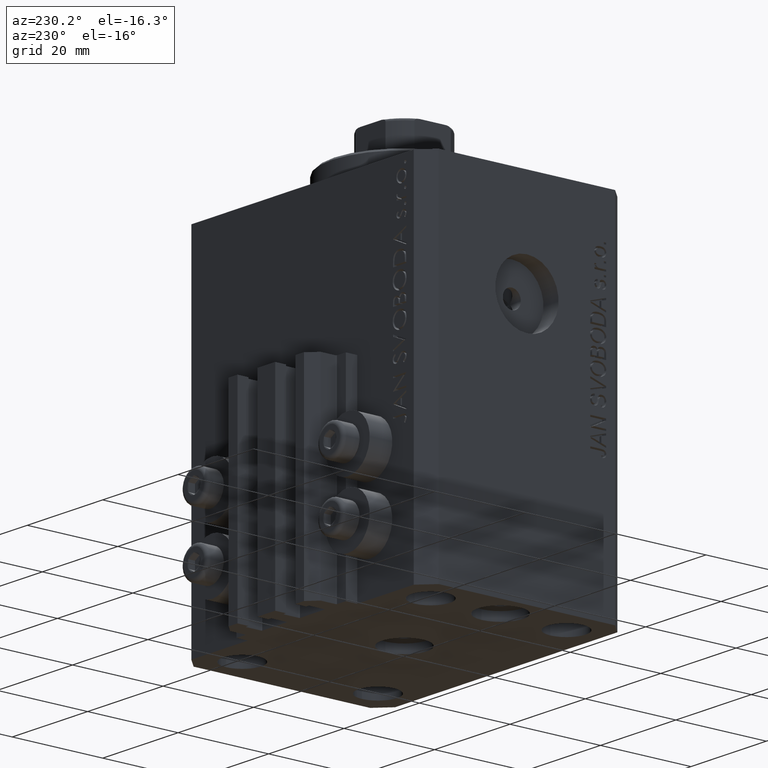
[diagram: clean part render]
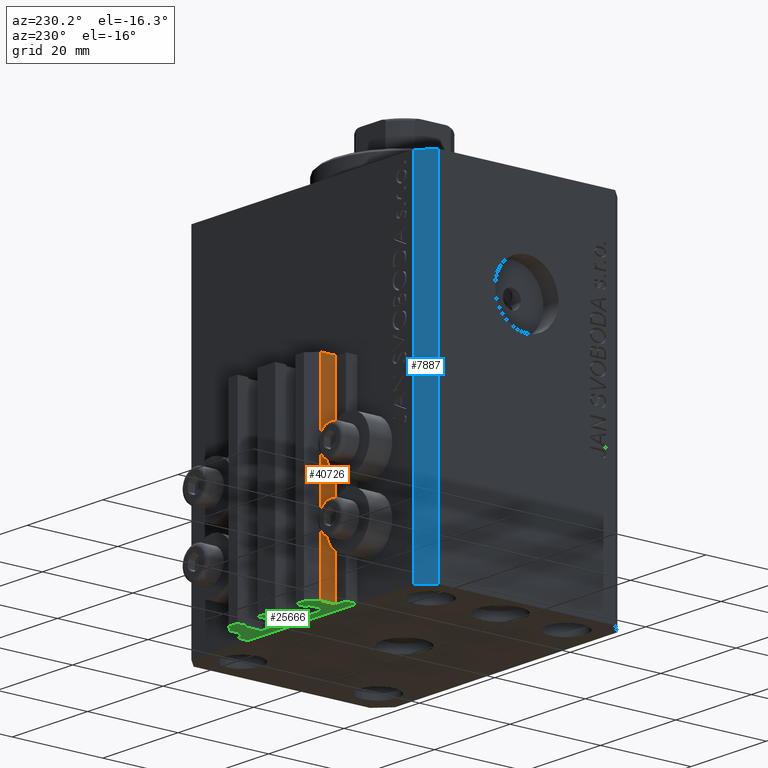
[diagram: same view with three faces highlighted in distinct colors, each labeled with its STEP entity id]
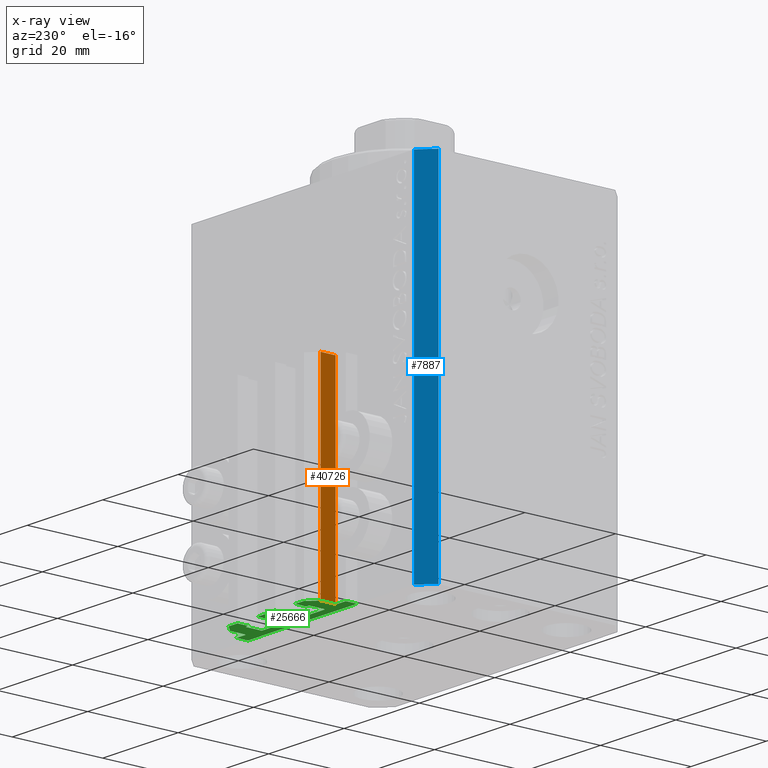
[diagram: x-ray of the same camera — body ghosted, the three highlighted faces saturated]
A machine part, auxiliary view with three faces highlighted in distinct colors.
The next image is the same camera in x-ray (body ghosted, the three faces saturated) — at least one of them is partly hidden behind the body in this view.
Their STEP definitions:

[orange] entity #40726 — the highlighted planar face has unit normal (-1, 0, 0).
#80 = DIRECTION ( 'NONE',  ( -1.000000000000000000, 0.000000000000000000, 0.000000000000000000 ) ) ;
#971 = DIRECTION ( 'NONE',  ( 0.000000000000000000, -1.000000000000000000, 0.000000000000000000 ) ) ;
#1113 = ORIENTED_EDGE ( 'NONE', *, *, #45556, .F. ) ;
#1433 = LINE ( 'NONE', #5736, #36878 ) ;
#2154 = EDGE_CURVE ( 'NONE', #24884, #34151, #42245, .T. ) ;
#4260 = CARTESIAN_POINT ( 'NONE',  ( -12.00000000000000000, 28.49999999999948841, -77.00000000000000000 ) ) ;
#5592 = CARTESIAN_POINT ( 'NONE',  ( -12.00000000000000000, 25.19999999999949125, -77.00000000000000000 ) ) ;
#5691 = FACE_OUTER_BOUND ( 'NONE', #47113, .T. ) ;
#5736 = CARTESIAN_POINT ( 'NONE',  ( -12.00000000000000000, 28.49999999999948841, -77.00000000000000000 ) ) ;
#7991 = CARTESIAN_POINT ( 'NONE',  ( -12.00000000000000000, 28.49999999999948841, -33.00000000000000000 ) ) ;
#8513 = DIRECTION ( 'NONE',  ( 0.000000000000000000, -1.000000000000000000, 0.000000000000000000 ) ) ;
#10120 = DIRECTION ( 'NONE',  ( 0.000000000000000000, 0.000000000000000000, 1.000000000000000000 ) ) ;
#11389 = CARTESIAN_POINT ( 'NONE',  ( -12.00000000000000000, 28.49999999999948841, -33.00000000000000000 ) ) ;
#12878 = VECTOR ( 'NONE', #8513, 1000.000000000000000 ) ;
#14720 = PLANE ( 'NONE',  #41870 ) ;
#16094 = ORIENTED_EDGE ( 'NONE', *, *, #27514, .T. ) ;
#21410 = CARTESIAN_POINT ( 'NONE',  ( -12.00000000000000000, 25.19999999999949125, -77.00000000000000000 ) ) ;
#23521 = DIRECTION ( 'NONE',  ( 0.000000000000000000, 0.000000000000000000, 1.000000000000000000 ) ) ;
#24768 = CARTESIAN_POINT ( 'NONE',  ( -12.00000000000000000, 25.19999999999949125, -33.00000000000000000 ) ) ;
#24884 = VERTEX_POINT ( 'NONE', #4260 ) ;
#25466 = LINE ( 'NONE', #21410, #35368 ) ;
#26777 = EDGE_CURVE ( 'NONE', #24884, #31742, #1433, .T. ) ;
#27514 = EDGE_CURVE ( 'NONE', #34151, #47459, #25466, .T. ) ;
#28206 = ORIENTED_EDGE ( 'NONE', *, *, #26777, .F. ) ;
#31742 = VERTEX_POINT ( 'NONE', #7991 ) ;
#31857 = DIRECTION ( 'NONE',  ( 0.000000000000000000, 0.000000000000000000, 1.000000000000000000 ) ) ;
#33860 = CARTESIAN_POINT ( 'NONE',  ( -12.00000000000000000, 28.49999999999948841, -77.00000000000000000 ) ) ;
#33956 = LINE ( 'NONE', #11389, #12878 ) ;
#33989 = ORIENTED_EDGE ( 'NONE', *, *, #2154, .T. ) ;
#34151 = VERTEX_POINT ( 'NONE', #5592 ) ;
#35368 = VECTOR ( 'NONE', #10120, 1000.000000000000000 ) ;
#36878 = VECTOR ( 'NONE', #23521, 1000.000000000000000 ) ;
#40726 = ADVANCED_FACE ( 'NONE', ( #5691 ), #14720, .T. ) ;
#41870 = AXIS2_PLACEMENT_3D ( 'NONE', #43136, #80, #31857 ) ;
#42245 = LINE ( 'NONE', #33860, #43651 ) ;
#43136 = CARTESIAN_POINT ( 'NONE',  ( -12.00000000000000000, 28.49999999999948841, -77.00000000000000000 ) ) ;
#43651 = VECTOR ( 'NONE', #971, 1000.000000000000000 ) ;
#45556 = EDGE_CURVE ( 'NONE', #31742, #47459, #33956, .T. ) ;
#47113 = EDGE_LOOP ( 'NONE', ( #1113, #28206, #33989, #16094 ) ) ;
#47459 = VERTEX_POINT ( 'NONE', #24768 ) ;

[blue] entity #7887 — the highlighted planar face has unit normal (-0.7071, 0.7071, 0).
#1726 = LINE ( 'NONE', #38685, #2165 ) ;
#2165 = VECTOR ( 'NONE', #9399, 1000.000000000000000 ) ;
#5705 = VERTEX_POINT ( 'NONE', #13856 ) ;
#7209 = DIRECTION ( 'NONE',  ( -0.7071067811865474617, -0.7071067811865474617, 0.000000000000000000 ) ) ;
#7691 = FACE_OUTER_BOUND ( 'NONE', #44393, .T. ) ;
#7887 = ADVANCED_FACE ( 'NONE', ( #7691 ), #32891, .T. ) ;
#8948 = VERTEX_POINT ( 'NONE', #22698 ) ;
#9399 = DIRECTION ( 'NONE',  ( 0.000000000000000000, 0.000000000000000000, 1.000000000000000000 ) ) ;
#9913 = EDGE_CURVE ( 'NONE', #5705, #8948, #22470, .T. ) ;
#11050 = DIRECTION ( 'NONE',  ( -0.7071067811865475727, 0.7071067811865475727, 0.000000000000000000 ) ) ;
#12185 = DIRECTION ( 'NONE',  ( 0.000000000000000000, 0.000000000000000000, 1.000000000000000000 ) ) ;
#12416 = LINE ( 'NONE', #40755, #36810 ) ;
#12721 = ORIENTED_EDGE ( 'NONE', *, *, #9913, .F. ) ;
#13856 = CARTESIAN_POINT ( 'NONE',  ( -29.49999999999650413, 22.49999999999949907, 0.000000000000000000 ) ) ;
#15866 = AXIS2_PLACEMENT_3D ( 'NONE', #25463, #11050, #7209 ) ;
#17306 = VECTOR ( 'NONE', #30158, 1000.000000000000114 ) ;
#18394 = CARTESIAN_POINT ( 'NONE',  ( -29.49999999999650413, 22.49999999999949907, 0.000000000000000000 ) ) ;
#21016 = EDGE_CURVE ( 'NONE', #27257, #8948, #1726, .T. ) ;
#22470 = LINE ( 'NONE', #18394, #17306 ) ;
#22698 = CARTESIAN_POINT ( 'NONE',  ( -32.49999999999650413, 19.49999999999949907, 0.000000000000000000 ) ) ;
#24913 = EDGE_CURVE ( 'NONE', #37896, #5705, #12416, .T. ) ;
#25463 = CARTESIAN_POINT ( 'NONE',  ( -29.49999999999650413, 22.49999999999949907, -77.00000000000000000 ) ) ;
#26384 = EDGE_CURVE ( 'NONE', #37896, #27257, #30543, .T. ) ;
#26952 = CARTESIAN_POINT ( 'NONE',  ( -29.49999999999650413, 22.49999999999949907, -77.00000000000000000 ) ) ;
#27257 = VERTEX_POINT ( 'NONE', #32949 ) ;
#27404 = DIRECTION ( 'NONE',  ( -0.7071067811865474617, -0.7071067811865474617, 0.000000000000000000 ) ) ;
#29342 = CARTESIAN_POINT ( 'NONE',  ( -29.49999999999650413, 22.49999999999949907, -77.00000000000000000 ) ) ;
#30158 = DIRECTION ( 'NONE',  ( -0.7071067811865474617, -0.7071067811865474617, 0.000000000000000000 ) ) ;
#30543 = LINE ( 'NONE', #26952, #34546 ) ;
#32891 = PLANE ( 'NONE',  #15866 ) ;
#32949 = CARTESIAN_POINT ( 'NONE',  ( -32.49999999999650413, 19.49999999999949907, -77.00000000000000000 ) ) ;
#34546 = VECTOR ( 'NONE', #27404, 1000.000000000000114 ) ;
#36810 = VECTOR ( 'NONE', #12185, 1000.000000000000000 ) ;
#37896 = VERTEX_POINT ( 'NONE', #29342 ) ;
#38685 = CARTESIAN_POINT ( 'NONE',  ( -32.49999999999650413, 19.49999999999949907, -77.00000000000000000 ) ) ;
#40145 = ORIENTED_EDGE ( 'NONE', *, *, #26384, .T. ) ;
#40755 = CARTESIAN_POINT ( 'NONE',  ( -29.49999999999650413, 22.49999999999949907, -77.00000000000000000 ) ) ;
#42606 = ORIENTED_EDGE ( 'NONE', *, *, #21016, .T. ) ;
#42708 = ORIENTED_EDGE ( 'NONE', *, *, #24913, .F. ) ;
#44393 = EDGE_LOOP ( 'NONE', ( #12721, #42708, #40145, #42606 ) ) ;

[green] entity #25666 — the highlighted planar face has unit normal (0, 0, 1).
#38 = VERTEX_POINT ( 'NONE', #17412 ) ;
#79 = CARTESIAN_POINT ( 'NONE',  ( 2.349999999999999645, 28.09999999999950049, -77.00000000000000000 ) ) ;
#115 = EDGE_CURVE ( 'NONE', #18746, #43552, #33471, .T. ) ;
#166 = VERTEX_POINT ( 'NONE', #12107 ) ;
#399 = CARTESIAN_POINT ( 'NONE',  ( 9.999999999999994671, 30.49999999999949551, -77.00000000000000000 ) ) ;
#467 = CARTESIAN_POINT ( 'NONE',  ( 7.649999999999995026, 30.49999999999949196, -77.00000000000000000 ) ) ;
#503 = VECTOR ( 'NONE', #10905, 1000.000000000000000 ) ;
#550 = CARTESIAN_POINT ( 'NONE',  ( -1.600000000000000755, 24.69999999999949480, -77.00000000000000000 ) ) ;
#971 = DIRECTION ( 'NONE',  ( 0.000000000000000000, -1.000000000000000000, 0.000000000000000000 ) ) ;
#1613 = VERTEX_POINT ( 'NONE', #39697 ) ;
#1848 = ORIENTED_EDGE ( 'NONE', *, *, #10666, .T. ) ;
#1860 = CARTESIAN_POINT ( 'NONE',  ( -1.800000000000000933, 24.49999999999949551, -77.00000000000000000 ) ) ;
#2007 = VERTEX_POINT ( 'NONE', #22354 ) ;
#2126 = VECTOR ( 'NONE', #26417, 1000.000000000000000 ) ;
#2154 = EDGE_CURVE ( 'NONE', #24884, #34151, #42245, .T. ) ;
#2505 = LINE ( 'NONE', #79, #44510 ) ;
#2516 = ORIENTED_EDGE ( 'NONE', *, *, #14234, .F. ) ;
#2803 = CARTESIAN_POINT ( 'NONE',  ( -1.600000000000000533, 27.89999999999950120, -77.00000000000000000 ) ) ;
#2970 = CARTESIAN_POINT ( 'NONE',  ( 1.800000000000000933, 24.69999999999949480, -77.00000000000000000 ) ) ;
#3183 = VERTEX_POINT ( 'NONE', #13829 ) ;
#3211 = DIRECTION ( 'NONE',  ( 0.000000000000000000, 0.000000000000000000, 1.000000000000000000 ) ) ;
#3234 = CARTESIAN_POINT ( 'NONE',  ( 12.00000000000000178, 28.49999999999950973, -77.00000000000000000 ) ) ;
#3516 = ORIENTED_EDGE ( 'NONE', *, *, #35276, .T. ) ;
#3688 = VERTEX_POINT ( 'NONE', #1860 ) ;
#3745 = CARTESIAN_POINT ( 'NONE',  ( 12.00000000000000355, 25.19999999999951257, -77.00000000000000000 ) ) ;
#3832 = CIRCLE ( 'NONE', #44476, 0.1999999999999979294 ) ;
#3939 = EDGE_CURVE ( 'NONE', #19540, #24884, #28197, .T. ) ;
#3981 = ORIENTED_EDGE ( 'NONE', *, *, #38944, .F. ) ;
#4063 = VERTEX_POINT ( 'NONE', #550 ) ;
#4152 = DIRECTION ( 'NONE',  ( 0.000000000000000000, 0.000000000000000000, 1.000000000000000000 ) ) ;
#4260 = CARTESIAN_POINT ( 'NONE',  ( -12.00000000000000000, 28.49999999999948841, -77.00000000000000000 ) ) ;
#4294 = CARTESIAN_POINT ( 'NONE',  ( -2.350000000000003197, 28.09999999999950049, -77.00000000000000000 ) ) ;
#4558 = DIRECTION ( 'NONE',  ( 1.000000000000000000, 0.000000000000000000, 0.000000000000000000 ) ) ;
#4582 = DIRECTION ( 'NONE',  ( -1.000000000000000000, 0.000000000000000000, 0.000000000000000000 ) ) ;
#4727 = ORIENTED_EDGE ( 'NONE', *, *, #31528, .F. ) ;
#4871 = EDGE_CURVE ( 'NONE', #2007, #166, #25964, .T. ) ;
#4876 = EDGE_CURVE ( 'NONE', #22339, #4063, #10026, .T. ) ;
#5412 = CIRCLE ( 'NONE', #27667, 0.2000000000000005107 ) ;
#5456 = DIRECTION ( 'NONE',  ( -1.000000000000000000, 1.508455196501571429E-15, 0.000000000000000000 ) ) ;
#5592 = CARTESIAN_POINT ( 'NONE',  ( -12.00000000000000000, 25.19999999999949125, -77.00000000000000000 ) ) ;
#5690 = LINE ( 'NONE', #5919, #35764 ) ;
#5897 = ORIENTED_EDGE ( 'NONE', *, *, #36611, .F. ) ;
#5917 = LINE ( 'NONE', #21537, #40741 ) ;
#5919 = CARTESIAN_POINT ( 'NONE',  ( -12.20000000000000107, 24.99999999999948841, -77.00000000000000000 ) ) ;
#6074 = VECTOR ( 'NONE', #24190, 1000.000000000000000 ) ;
#6136 = VERTEX_POINT ( 'NONE', #30242 ) ;
#6181 = DIRECTION ( 'NONE',  ( 0.000000000000000000, 0.000000000000000000, 1.000000000000000000 ) ) ;
#6185 = CARTESIAN_POINT ( 'NONE',  ( -8.199999999999997513, 27.89999999999948699, -77.00000000000000000 ) ) ;
#6318 = ORIENTED_EDGE ( 'NONE', *, *, #41655, .F. ) ;
#6459 = LINE ( 'NONE', #17025, #13165 ) ;
#6619 = LINE ( 'NONE', #21266, #8736 ) ;
#6744 = CARTESIAN_POINT ( 'NONE',  ( 14.49999999999999645, 22.49999999999949907, -77.00000000000000000 ) ) ;
#6861 = DIRECTION ( 'NONE',  ( 1.000000000000000000, 6.308085367188338373E-15, 0.000000000000000000 ) ) ;
#7510 = CARTESIAN_POINT ( 'NONE',  ( 12.20000000000000284, 25.19999999999950546, -77.00000000000000000 ) ) ;
#7560 = EDGE_CURVE ( 'NONE', #6136, #45007, #26059, .T. ) ;
#7573 = ORIENTED_EDGE ( 'NONE', *, *, #9630, .F. ) ;
#7708 = VECTOR ( 'NONE', #13999, 1000.000000000000000 ) ;
#7758 = DIRECTION ( 'NONE',  ( 1.000000000000000000, 0.000000000000000000, -0.000000000000000000 ) ) ;
#7897 = EDGE_CURVE ( 'NONE', #37844, #14099, #12242, .T. ) ;
#8068 = EDGE_CURVE ( 'NONE', #18349, #19540, #6459, .T. ) ;
#8170 = ORIENTED_EDGE ( 'NONE', *, *, #28016, .T. ) ;
#8260 = ORIENTED_EDGE ( 'NONE', *, *, #45238, .F. ) ;
#8267 = CARTESIAN_POINT ( 'NONE',  ( 12.00000000000000178, 28.49999999999950973, -77.00000000000000000 ) ) ;
#8280 = CARTESIAN_POINT ( 'NONE',  ( 1.800000000000000933, 24.49999999999949196, -77.00000000000000000 ) ) ;
#8736 = VECTOR ( 'NONE', #35900, 1000.000000000000000 ) ;
#9375 = CARTESIAN_POINT ( 'NONE',  ( 14.49999999999999822, 24.99999999999950617, -77.00000000000000000 ) ) ;
#9383 = ORIENTED_EDGE ( 'NONE', *, *, #18368, .T. ) ;
#9427 = AXIS2_PLACEMENT_3D ( 'NONE', #18053, #32687, #13982 ) ;
#9615 = LINE ( 'NONE', #16346, #14350 ) ;
#9630 = EDGE_CURVE ( 'NONE', #23665, #1613, #5690, .T. ) ;
#9639 = DIRECTION ( 'NONE',  ( 0.000000000000000000, 0.000000000000000000, 1.000000000000000000 ) ) ;
#9734 = VECTOR ( 'NONE', #6861, 1000.000000000000000 ) ;
#9958 = DIRECTION ( 'NONE',  ( -0.7071067811865472397, -0.7071067811865479058, 0.000000000000000000 ) ) ;
#10026 = LINE ( 'NONE', #2803, #10650 ) ;
#10346 = CARTESIAN_POINT ( 'NONE',  ( -2.350000000000003197, 28.09999999999950049, -77.00000000000000000 ) ) ;
#10422 = CIRCLE ( 'NONE', #37259, 0.1999999999999987899 ) ;
#10457 = VECTOR ( 'NONE', #30425, 1000.000000000000000 ) ;
#10601 = CARTESIAN_POINT ( 'NONE',  ( 14.49999999999999645, 22.49999999999949907, -77.00000000000000000 ) ) ;
#10650 = VECTOR ( 'NONE', #35463, 1000.000000000000000 ) ;
#10666 = EDGE_CURVE ( 'NONE', #27100, #33704, #10422, .T. ) ;
#10782 = EDGE_CURVE ( 'NONE', #3688, #4063, #31883, .T. ) ;
#10905 = DIRECTION ( 'NONE',  ( 0.000000000000000000, -1.000000000000000000, 0.000000000000000000 ) ) ;
#10953 = ORIENTED_EDGE ( 'NONE', *, *, #3939, .F. ) ;
#11089 = VERTEX_POINT ( 'NONE', #20004 ) ;
#11131 = ORIENTED_EDGE ( 'NONE', *, *, #38296, .F. ) ;
#11523 = CARTESIAN_POINT ( 'NONE',  ( -12.20000000000000107, 24.99999999999948841, -77.00000000000000000 ) ) ;
#11548 = AXIS2_PLACEMENT_3D ( 'NONE', #7510, #4152, #7758 ) ;
#11632 = EDGE_CURVE ( 'NONE', #27206, #35346, #31132, .T. ) ;
#11792 = ORIENTED_EDGE ( 'NONE', *, *, #2154, .F. ) ;
#12107 = CARTESIAN_POINT ( 'NONE',  ( -8.199999999999999289, 24.49999999999949551, -77.00000000000000000 ) ) ;
#12115 = VERTEX_POINT ( 'NONE', #6744 ) ;
#12125 = VERTEX_POINT ( 'NONE', #33612 ) ;
#12242 = LINE ( 'NONE', #15835, #20495 ) ;
#12482 = CARTESIAN_POINT ( 'NONE',  ( 8.200000000000001066, 24.69999999999949125, -77.00000000000000000 ) ) ;
#12614 = CARTESIAN_POINT ( 'NONE',  ( -8.199999999999997513, 28.09999999999948628, -77.00000000000000000 ) ) ;
#12818 = CARTESIAN_POINT ( 'NONE',  ( -14.50000000000000000, 24.99999999999949196, -77.00000000000000000 ) ) ;
#13064 = CARTESIAN_POINT ( 'NONE',  ( 1.599999999999999645, 24.69999999999949480, -77.00000000000000000 ) ) ;
#13091 = VERTEX_POINT ( 'NONE', #19748 ) ;
#13165 = VECTOR ( 'NONE', #20625, 1000.000000000000000 ) ;
#13293 = CIRCLE ( 'NONE', #34748, 0.2000000000000005107 ) ;
#13712 = DIRECTION ( 'NONE',  ( 1.000000000000000000, 0.000000000000000000, 0.000000000000000000 ) ) ;
#13829 = CARTESIAN_POINT ( 'NONE',  ( -2.350000000000003197, 30.49999999999949907, -77.00000000000000000 ) ) ;
#13982 = DIRECTION ( 'NONE',  ( 1.000000000000000000, 0.000000000000000000, 0.000000000000000000 ) ) ;
#13999 = DIRECTION ( 'NONE',  ( 0.000000000000000000, 1.000000000000000000, 0.000000000000000000 ) ) ;
#14039 = EDGE_CURVE ( 'NONE', #3688, #166, #15134, .T. ) ;
#14087 = CARTESIAN_POINT ( 'NONE',  ( -8.199999999999999289, 24.69999999999949480, -77.00000000000000000 ) ) ;
#14099 = VERTEX_POINT ( 'NONE', #41770 ) ;
#14234 = EDGE_CURVE ( 'NONE', #38, #38298, #27623, .T. ) ;
#14350 = VECTOR ( 'NONE', #24260, 1000.000000000000000 ) ;
#14426 = DIRECTION ( 'NONE',  ( -1.000000000000000000, 0.000000000000000000, 0.000000000000000000 ) ) ;
#14591 = LINE ( 'NONE', #21347, #33191 ) ;
#14845 = DIRECTION ( 'NONE',  ( 1.000000000000000000, 0.000000000000000000, 0.000000000000000000 ) ) ;
#15039 = LINE ( 'NONE', #18179, #46184 ) ;
#15134 = LINE ( 'NONE', #36518, #28929 ) ;
#15512 = EDGE_CURVE ( 'NONE', #36841, #40023, #9615, .T. ) ;
#15585 = CARTESIAN_POINT ( 'NONE',  ( 12.20000000000000284, 24.99999999999950617, -77.00000000000000000 ) ) ;
#15590 = AXIS2_PLACEMENT_3D ( 'NONE', #28123, #9639, #31244 ) ;
#15817 = DIRECTION ( 'NONE',  ( 1.000000000000000000, -6.308085367188365195E-15, 0.000000000000000000 ) ) ;
#15835 = CARTESIAN_POINT ( 'NONE',  ( 1.800000000000000933, 28.09999999999949694, -77.00000000000000000 ) ) ;
#16295 = LINE ( 'NONE', #4294, #20212 ) ;
#16346 = CARTESIAN_POINT ( 'NONE',  ( -8.199999999999997513, 28.09999999999948628, -77.00000000000000000 ) ) ;
#16554 = DIRECTION ( 'NONE',  ( 1.000000000000000000, 0.000000000000000000, 0.000000000000000000 ) ) ;
#17025 = CARTESIAN_POINT ( 'NONE',  ( -7.650000000000000355, 30.49999999999948486, -77.00000000000000000 ) ) ;
#17128 = VECTOR ( 'NONE', #44179, 1000.000000000000000 ) ;
#17146 = CARTESIAN_POINT ( 'NONE',  ( -1.800000000000000933, 27.89999999999950120, -77.00000000000000000 ) ) ;
#17375 = DIRECTION ( 'NONE',  ( 0.000000000000000000, 0.000000000000000000, 1.000000000000000000 ) ) ;
#17412 = CARTESIAN_POINT ( 'NONE',  ( 14.49999999999999822, 24.99999999999950617, -77.00000000000000000 ) ) ;
#17519 = ORIENTED_EDGE ( 'NONE', *, *, #8068, .F. ) ;
#17614 = CARTESIAN_POINT ( 'NONE',  ( -7.650000000000000355, 28.09999999999948628, -77.00000000000000000 ) ) ;
#17985 = DIRECTION ( 'NONE',  ( 0.000000000000000000, 0.000000000000000000, 1.000000000000000000 ) ) ;
#18053 = CARTESIAN_POINT ( 'NONE',  ( 1.800000000000000933, 27.89999999999950120, -77.00000000000000000 ) ) ;
#18179 = CARTESIAN_POINT ( 'NONE',  ( 12.00000000000000178, 25.19999999999951257, -77.00000000000000000 ) ) ;
#18349 = VERTEX_POINT ( 'NONE', #22776 ) ;
#18368 = EDGE_CURVE ( 'NONE', #36841, #32295, #24448, .T. ) ;
#18380 = ORIENTED_EDGE ( 'NONE', *, *, #44237, .F. ) ;
#18412 = EDGE_CURVE ( 'NONE', #43552, #13091, #42433, .T. ) ;
#18746 = VERTEX_POINT ( 'NONE', #3234 ) ;
#18803 = DIRECTION ( 'NONE',  ( 0.000000000000000000, 1.000000000000000000, 0.000000000000000000 ) ) ;
#19540 = VERTEX_POINT ( 'NONE', #45025 ) ;
#19698 = ORIENTED_EDGE ( 'NONE', *, *, #7560, .F. ) ;
#19748 = CARTESIAN_POINT ( 'NONE',  ( 7.649999999999995026, 30.49999999999949196, -77.00000000000000000 ) ) ;
#19812 = ORIENTED_EDGE ( 'NONE', *, *, #32238, .F. ) ;
#19835 = ORIENTED_EDGE ( 'NONE', *, *, #26276, .F. ) ;
#20004 = CARTESIAN_POINT ( 'NONE',  ( -14.50000000000000000, 22.49999999999949907, -77.00000000000000000 ) ) ;
#20212 = VECTOR ( 'NONE', #15817, 1000.000000000000000 ) ;
#20495 = VECTOR ( 'NONE', #27353, 1000.000000000000000 ) ;
#20625 = DIRECTION ( 'NONE',  ( -1.000000000000000000, 1.476360405086644852E-15, 0.000000000000000000 ) ) ;
#21106 = DIRECTION ( 'NONE',  ( 1.084202172485506406E-15, 1.000000000000000000, 0.000000000000000000 ) ) ;
#21197 = CARTESIAN_POINT ( 'NONE',  ( 1.800000000000000933, 28.09999999999950049, -77.00000000000000000 ) ) ;
#21266 = CARTESIAN_POINT ( 'NONE',  ( 8.400000000000000355, 27.89999999999950475, -77.00000000000000000 ) ) ;
#21342 = EDGE_LOOP ( 'NONE', ( #4727, #7573, #22200, #11792, #10953, #17519, #19835, #33215, #9383, #19812, #43894, #39600, #45963, #42663, #34943, #11131, #6318, #8170, #22547, #39528, #3516, #26841, #42502, #8260, #1848, #3981, #42738, #19698, #18380, #23737, #31684, #46323, #36963, #2516, #5897, #46197 ) ) ;
#21347 = CARTESIAN_POINT ( 'NONE',  ( -8.400000000000000355, 24.69999999999949480, -77.00000000000000000 ) ) ;
#21537 = CARTESIAN_POINT ( 'NONE',  ( -2.350000000000003197, 30.49999999999949907, -77.00000000000000000 ) ) ;
#21863 = DIRECTION ( 'NONE',  ( 0.000000000000000000, 0.000000000000000000, 1.000000000000000000 ) ) ;
#21921 = LINE ( 'NONE', #17614, #7708 ) ;
#22137 = CARTESIAN_POINT ( 'NONE',  ( 1.600000000000000533, 27.89999999999950120, -77.00000000000000000 ) ) ;
#22200 = ORIENTED_EDGE ( 'NONE', *, *, #33075, .T. ) ;
#22339 = VERTEX_POINT ( 'NONE', #29480 ) ;
#22354 = CARTESIAN_POINT ( 'NONE',  ( -8.399999999999998579, 24.69999999999949480, -77.00000000000000000 ) ) ;
#22547 = ORIENTED_EDGE ( 'NONE', *, *, #25563, .F. ) ;
#22676 = LINE ( 'NONE', #40424, #503 ) ;
#22776 = CARTESIAN_POINT ( 'NONE',  ( -7.650000000000000355, 30.49999999999948486, -77.00000000000000000 ) ) ;
#23657 = VECTOR ( 'NONE', #40732, 1000.000000000000000 ) ;
#23665 = VERTEX_POINT ( 'NONE', #11523 ) ;
#23737 = ORIENTED_EDGE ( 'NONE', *, *, #18412, .F. ) ;
#24190 = DIRECTION ( 'NONE',  ( -1.000000000000000000, -1.476360405086644852E-15, 0.000000000000000000 ) ) ;
#24260 = DIRECTION ( 'NONE',  ( 1.000000000000000000, 0.000000000000000000, 0.000000000000000000 ) ) ;
#24448 = CIRCLE ( 'NONE', #26788, 0.1999999999999987899 ) ;
#24496 = VERTEX_POINT ( 'NONE', #8280 ) ;
#24546 = EDGE_CURVE ( 'NONE', #27206, #24496, #45233, .T. ) ;
#24610 = CARTESIAN_POINT ( 'NONE',  ( 8.400000000000000355, 24.69999999999949125, -77.00000000000000000 ) ) ;
#24884 = VERTEX_POINT ( 'NONE', #4260 ) ;
#25150 = CARTESIAN_POINT ( 'NONE',  ( 2.349999999999999645, 30.49999999999949907, -77.00000000000000000 ) ) ;
#25302 = DIRECTION ( 'NONE',  ( 1.000000000000000000, 0.000000000000000000, 0.000000000000000000 ) ) ;
#25507 = EDGE_CURVE ( 'NONE', #22339, #30250, #3832, .T. ) ;
#25563 = EDGE_CURVE ( 'NONE', #14099, #38446, #2505, .T. ) ;
#25666 = ADVANCED_FACE ( 'NONE', ( #33435 ), #36813, .F. ) ;
#25964 = CIRCLE ( 'NONE', #31355, 0.1999999999999987899 ) ;
#26059 = LINE ( 'NONE', #39743, #9734 ) ;
#26265 = VECTOR ( 'NONE', #44764, 1000.000000000000000 ) ;
#26276 = EDGE_CURVE ( 'NONE', #40023, #18349, #21921, .T. ) ;
#26417 = DIRECTION ( 'NONE',  ( 3.614007241618365534E-16, -1.000000000000000000, 0.000000000000000000 ) ) ;
#26614 = EDGE_CURVE ( 'NONE', #12125, #45007, #5412, .T. ) ;
#26788 = AXIS2_PLACEMENT_3D ( 'NONE', #6185, #46031, #28029 ) ;
#26841 = ORIENTED_EDGE ( 'NONE', *, *, #11632, .F. ) ;
#27100 = VERTEX_POINT ( 'NONE', #38515 ) ;
#27141 = DIRECTION ( 'NONE',  ( 0.000000000000000000, 0.000000000000000000, 1.000000000000000000 ) ) ;
#27206 = VERTEX_POINT ( 'NONE', #13064 ) ;
#27353 = DIRECTION ( 'NONE',  ( 1.000000000000000000, 6.308085367188405427E-15, 0.000000000000000000 ) ) ;
#27446 = VECTOR ( 'NONE', #44267, 1000.000000000000000 ) ;
#27623 = LINE ( 'NONE', #9375, #37360 ) ;
#27667 = AXIS2_PLACEMENT_3D ( 'NONE', #33358, #21863, #4558 ) ;
#28016 = EDGE_CURVE ( 'NONE', #3183, #38446, #5917, .T. ) ;
#28029 = DIRECTION ( 'NONE',  ( 1.000000000000000000, 0.000000000000000000, 0.000000000000000000 ) ) ;
#28123 = CARTESIAN_POINT ( 'NONE',  ( 12.20000000000000284, 25.19999999999950546, -77.00000000000000000 ) ) ;
#28190 = CARTESIAN_POINT ( 'NONE',  ( -7.650000000000000355, 28.09999999999948628, -77.00000000000000000 ) ) ;
#28197 = LINE ( 'NONE', #42829, #34514 ) ;
#28263 = DIRECTION ( 'NONE',  ( 1.000000000000000000, 0.000000000000000000, 0.000000000000000000 ) ) ;
#28887 = DIRECTION ( 'NONE',  ( 1.000000000000000000, 0.000000000000000000, 0.000000000000000000 ) ) ;
#28929 = VECTOR ( 'NONE', #14426, 1000.000000000000000 ) ;
#29465 = DIRECTION ( 'NONE',  ( 0.000000000000000000, 1.000000000000000000, 0.000000000000000000 ) ) ;
#29480 = CARTESIAN_POINT ( 'NONE',  ( -1.600000000000003197, 27.89999999999950120, -77.00000000000000000 ) ) ;
#30002 = CARTESIAN_POINT ( 'NONE',  ( 8.200000000000001066, 28.09999999999950759, -77.00000000000000000 ) ) ;
#30242 = CARTESIAN_POINT ( 'NONE',  ( 7.649999999999995914, 28.09999999999950404, -77.00000000000000000 ) ) ;
#30250 = VERTEX_POINT ( 'NONE', #44450 ) ;
#30403 = EDGE_CURVE ( 'NONE', #33392, #18746, #15039, .T. ) ;
#30425 = DIRECTION ( 'NONE',  ( 0.000000000000000000, 1.000000000000000000, 0.000000000000000000 ) ) ;
#30880 = CIRCLE ( 'NONE', #9427, 0.1999999999999981515 ) ;
#30904 = CARTESIAN_POINT ( 'NONE',  ( 1.600000000000000533, 24.69999999999949480, -77.00000000000000000 ) ) ;
#31122 = VERTEX_POINT ( 'NONE', #10346 ) ;
#31132 = LINE ( 'NONE', #30904, #10457 ) ;
#31244 = DIRECTION ( 'NONE',  ( 1.000000000000000000, 0.000000000000000000, 0.000000000000000000 ) ) ;
#31355 = AXIS2_PLACEMENT_3D ( 'NONE', #14087, #6181, #28263 ) ;
#31528 = EDGE_CURVE ( 'NONE', #1613, #11089, #37808, .T. ) ;
#31684 = ORIENTED_EDGE ( 'NONE', *, *, #115, .F. ) ;
#31883 = CIRCLE ( 'NONE', #35710, 0.1999999999999994282 ) ;
#31958 = LINE ( 'NONE', #46590, #40183 ) ;
#32238 = EDGE_CURVE ( 'NONE', #2007, #32295, #14591, .T. ) ;
#32295 = VERTEX_POINT ( 'NONE', #47234 ) ;
#32687 = DIRECTION ( 'NONE',  ( 0.000000000000000000, 0.000000000000000000, 1.000000000000000000 ) ) ;
#33075 = EDGE_CURVE ( 'NONE', #23665, #34151, #13293, .T. ) ;
#33191 = VECTOR ( 'NONE', #21106, 1000.000000000000000 ) ;
#33215 = ORIENTED_EDGE ( 'NONE', *, *, #15512, .F. ) ;
#33355 = LINE ( 'NONE', #467, #2126 ) ;
#33358 = CARTESIAN_POINT ( 'NONE',  ( 8.200000000000001066, 27.89999999999950475, -77.00000000000000000 ) ) ;
#33392 = VERTEX_POINT ( 'NONE', #3745 ) ;
#33435 = FACE_OUTER_BOUND ( 'NONE', #21342, .T. ) ;
#33471 = LINE ( 'NONE', #8267, #27446 ) ;
#33612 = CARTESIAN_POINT ( 'NONE',  ( 8.400000000000000355, 27.89999999999950475, -77.00000000000000000 ) ) ;
#33704 = VERTEX_POINT ( 'NONE', #24610 ) ;
#33811 = EDGE_CURVE ( 'NONE', #33392, #38298, #36290, .T. ) ;
#33860 = CARTESIAN_POINT ( 'NONE',  ( -12.00000000000000000, 28.49999999999948841, -77.00000000000000000 ) ) ;
#34151 = VERTEX_POINT ( 'NONE', #5592 ) ;
#34514 = VECTOR ( 'NONE', #9958, 999.9999999999998863 ) ;
#34748 = AXIS2_PLACEMENT_3D ( 'NONE', #35286, #42000, #16554 ) ;
#34943 = ORIENTED_EDGE ( 'NONE', *, *, #25507, .T. ) ;
#35276 = EDGE_CURVE ( 'NONE', #37844, #35346, #30880, .T. ) ;
#35286 = CARTESIAN_POINT ( 'NONE',  ( -12.20000000000000107, 25.19999999999949125, -77.00000000000000000 ) ) ;
#35346 = VERTEX_POINT ( 'NONE', #22137 ) ;
#35463 = DIRECTION ( 'NONE',  ( -6.776263578034385456E-17, -1.000000000000000000, 0.000000000000000000 ) ) ;
#35710 = AXIS2_PLACEMENT_3D ( 'NONE', #36938, #17985, #14845 ) ;
#35764 = VECTOR ( 'NONE', #5456, 1000.000000000000000 ) ;
#35900 = DIRECTION ( 'NONE',  ( -5.421010862427496532E-16, -1.000000000000000000, 0.000000000000000000 ) ) ;
#36167 = DIRECTION ( 'NONE',  ( 1.000000000000000000, 0.000000000000000000, 0.000000000000000000 ) ) ;
#36290 = CIRCLE ( 'NONE', #15590, 0.1999999999999987899 ) ;
#36421 = CARTESIAN_POINT ( 'NONE',  ( 8.200000000000001066, 24.49999999999949196, -77.00000000000000000 ) ) ;
#36518 = CARTESIAN_POINT ( 'NONE',  ( -1.800000000000000933, 24.49999999999949551, -77.00000000000000000 ) ) ;
#36611 = EDGE_CURVE ( 'NONE', #12115, #38, #36762, .T. ) ;
#36762 = LINE ( 'NONE', #10601, #17128 ) ;
#36813 = PLANE ( 'NONE',  #11548 ) ;
#36841 = VERTEX_POINT ( 'NONE', #12614 ) ;
#36938 = CARTESIAN_POINT ( 'NONE',  ( -1.800000000000000933, 24.69999999999949480, -77.00000000000000000 ) ) ;
#36963 = ORIENTED_EDGE ( 'NONE', *, *, #33811, .T. ) ;
#37259 = AXIS2_PLACEMENT_3D ( 'NONE', #12482, #27141, #41767 ) ;
#37360 = VECTOR ( 'NONE', #4582, 1000.000000000000000 ) ;
#37808 = LINE ( 'NONE', #12818, #26265 ) ;
#37844 = VERTEX_POINT ( 'NONE', #21197 ) ;
#38296 = EDGE_CURVE ( 'NONE', #31122, #30250, #16295, .T. ) ;
#38298 = VERTEX_POINT ( 'NONE', #15585 ) ;
#38446 = VERTEX_POINT ( 'NONE', #25150 ) ;
#38515 = CARTESIAN_POINT ( 'NONE',  ( 8.200000000000001066, 24.49999999999949196, -77.00000000000000000 ) ) ;
#38944 = EDGE_CURVE ( 'NONE', #12125, #33704, #6619, .T. ) ;
#39503 = EDGE_CURVE ( 'NONE', #11089, #12115, #31958, .T. ) ;
#39528 = ORIENTED_EDGE ( 'NONE', *, *, #7897, .F. ) ;
#39600 = ORIENTED_EDGE ( 'NONE', *, *, #14039, .F. ) ;
#39697 = CARTESIAN_POINT ( 'NONE',  ( -14.50000000000000000, 24.99999999999949196, -77.00000000000000000 ) ) ;
#39743 = CARTESIAN_POINT ( 'NONE',  ( 7.649999999999995914, 28.09999999999950404, -77.00000000000000000 ) ) ;
#39891 = AXIS2_PLACEMENT_3D ( 'NONE', #2970, #3211, #28887 ) ;
#40023 = VERTEX_POINT ( 'NONE', #28190 ) ;
#40183 = VECTOR ( 'NONE', #13712, 1000.000000000000000 ) ;
#40424 = CARTESIAN_POINT ( 'NONE',  ( -2.350000000000003197, 30.49999999999949907, -77.00000000000000000 ) ) ;
#40487 = LINE ( 'NONE', #36421, #23657 ) ;
#40732 = DIRECTION ( 'NONE',  ( -1.000000000000000000, 0.000000000000000000, 0.000000000000000000 ) ) ;
#40741 = VECTOR ( 'NONE', #36167, 1000.000000000000000 ) ;
#41655 = EDGE_CURVE ( 'NONE', #3183, #31122, #22676, .T. ) ;
#41767 = DIRECTION ( 'NONE',  ( 1.000000000000000000, 0.000000000000000000, 0.000000000000000000 ) ) ;
#41770 = CARTESIAN_POINT ( 'NONE',  ( 2.349999999999999645, 28.09999999999950049, -77.00000000000000000 ) ) ;
#42000 = DIRECTION ( 'NONE',  ( 0.000000000000000000, 0.000000000000000000, 1.000000000000000000 ) ) ;
#42245 = LINE ( 'NONE', #33860, #43651 ) ;
#42433 = LINE ( 'NONE', #46740, #6074 ) ;
#42502 = ORIENTED_EDGE ( 'NONE', *, *, #24546, .T. ) ;
#42663 = ORIENTED_EDGE ( 'NONE', *, *, #4876, .F. ) ;
#42738 = ORIENTED_EDGE ( 'NONE', *, *, #26614, .T. ) ;
#42829 = CARTESIAN_POINT ( 'NONE',  ( -10.00000000000000000, 30.49999999999948841, -77.00000000000000000 ) ) ;
#43552 = VERTEX_POINT ( 'NONE', #399 ) ;
#43651 = VECTOR ( 'NONE', #971, 1000.000000000000000 ) ;
#43894 = ORIENTED_EDGE ( 'NONE', *, *, #4871, .T. ) ;
#44179 = DIRECTION ( 'NONE',  ( 6.938893903907212600E-16, 1.000000000000000000, 0.000000000000000000 ) ) ;
#44237 = EDGE_CURVE ( 'NONE', #13091, #6136, #33355, .T. ) ;
#44267 = DIRECTION ( 'NONE',  ( -0.7071067811865507924, 0.7071067811865441310, 0.000000000000000000 ) ) ;
#44450 = CARTESIAN_POINT ( 'NONE',  ( -1.800000000000000933, 28.09999999999949694, -77.00000000000000000 ) ) ;
#44476 = AXIS2_PLACEMENT_3D ( 'NONE', #17146, #17375, #25302 ) ;
#44510 = VECTOR ( 'NONE', #18803, 1000.000000000000000 ) ;
#44764 = DIRECTION ( 'NONE',  ( 0.000000000000000000, -1.000000000000000000, 0.000000000000000000 ) ) ;
#45007 = VERTEX_POINT ( 'NONE', #30002 ) ;
#45025 = CARTESIAN_POINT ( 'NONE',  ( -10.00000000000000000, 30.49999999999948841, -77.00000000000000000 ) ) ;
#45233 = CIRCLE ( 'NONE', #39891, 0.2000000000000016209 ) ;
#45238 = EDGE_CURVE ( 'NONE', #27100, #24496, #40487, .T. ) ;
#45963 = ORIENTED_EDGE ( 'NONE', *, *, #10782, .T. ) ;
#46031 = DIRECTION ( 'NONE',  ( 0.000000000000000000, 0.000000000000000000, 1.000000000000000000 ) ) ;
#46184 = VECTOR ( 'NONE', #29465, 1000.000000000000000 ) ;
#46197 = ORIENTED_EDGE ( 'NONE', *, *, #39503, .F. ) ;
#46323 = ORIENTED_EDGE ( 'NONE', *, *, #30403, .F. ) ;
#46590 = CARTESIAN_POINT ( 'NONE',  ( -14.50000000000000000, 22.49999999999949907, -77.00000000000000000 ) ) ;
#46740 = CARTESIAN_POINT ( 'NONE',  ( 9.999999999999994671, 30.49999999999949551, -77.00000000000000000 ) ) ;
#47234 = CARTESIAN_POINT ( 'NONE',  ( -8.399999999999996803, 27.89999999999948699, -77.00000000000000000 ) ) ;